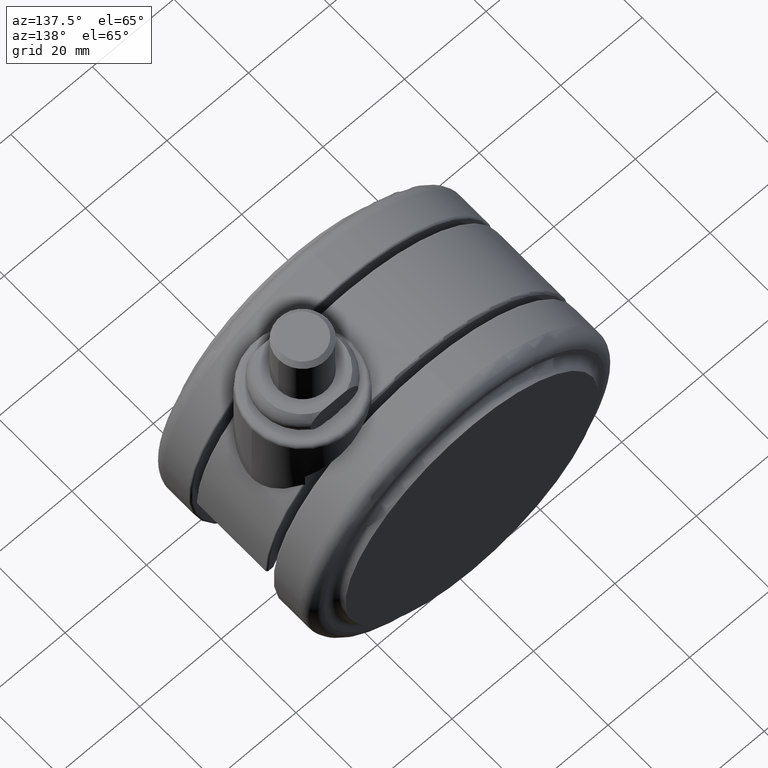
[diagram: clean part render]
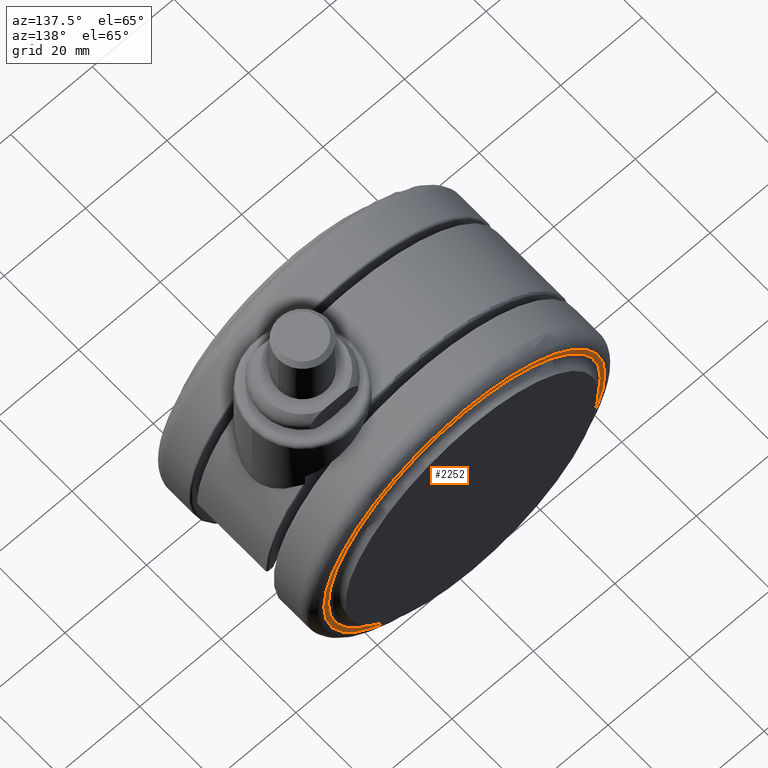
[diagram: same view with one face highlighted and labeled with its STEP entity id]
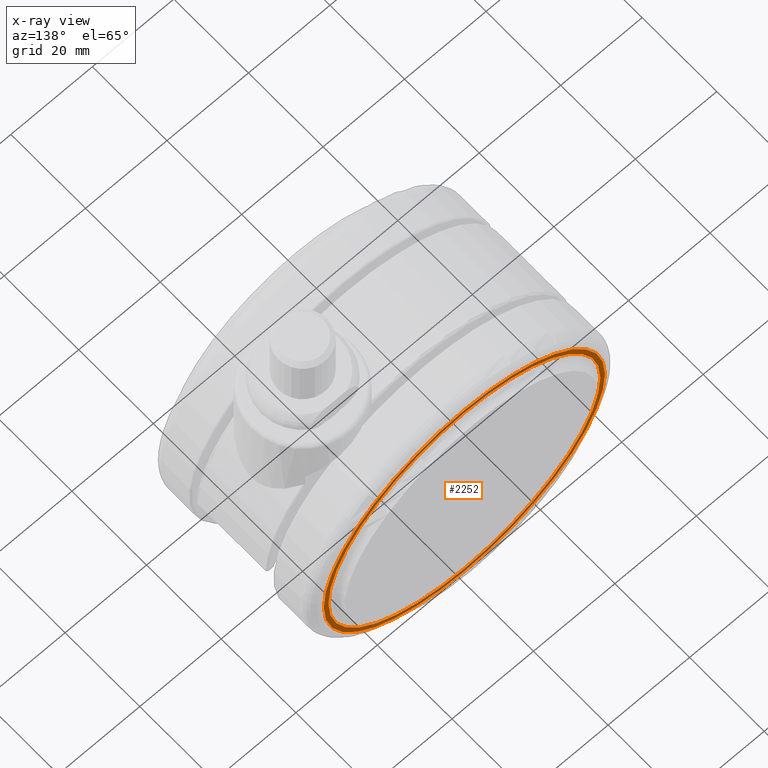
[diagram: x-ray of the same camera — body ghosted, the highlighted face saturated]
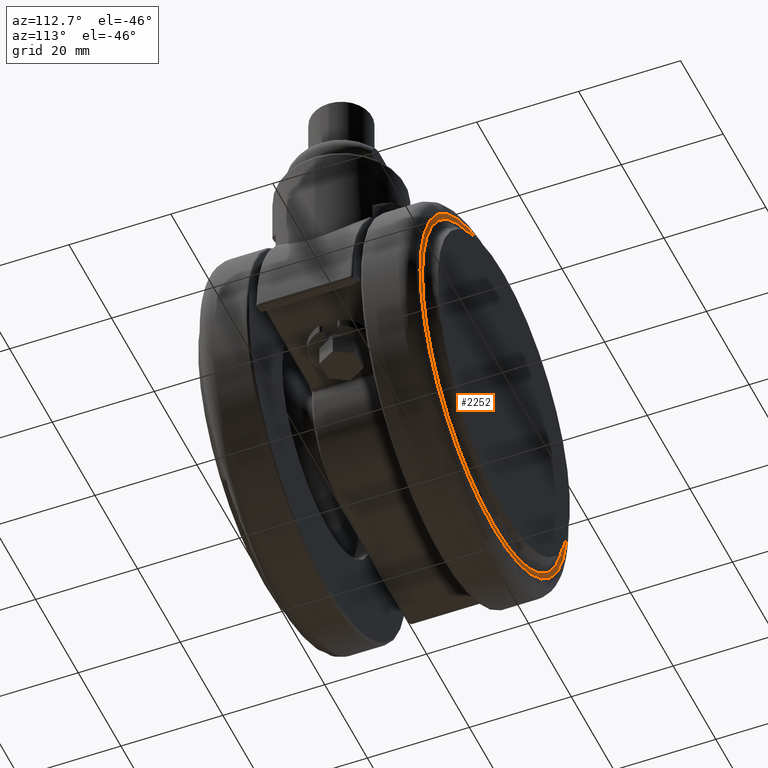
[diagram: same view with one face highlighted and labeled with its STEP entity id]
A machine part, auxiliary view. The second image highlights one B-rep face of the part: STEP entity #2252.
The next image is the same camera in x-ray: the body ghosted, the highlighted face saturated — about 0% of this face is hidden behind the body in this view.
A second angle (auxiliary view) of the same face is appended — the face is thin or edge-on in the first view.
In plain terms, the highlighted planar face has unit normal (0, 1, 0).
Its self-contained STEP definition (entity closure, byte-faithful):
#75 = ORIENTED_EDGE ( 'NONE', *, *, #699, .F. ) ;
#133 = PLANE ( 'NONE',  #1123 ) ;
#437 = EDGE_LOOP ( 'NONE', ( #75, #2395 ) ) ;
#474 = CIRCLE ( 'NONE', #2756, 33.38327505756375800 ) ;
#520 = CARTESIAN_POINT ( 'NONE',  ( -20.00000000000000000, 21.50000000000000000, -75.00000000000001400 ) ) ;
#555 = EDGE_LOOP ( 'NONE', ( #2861, #2438 ) ) ;
#557 = DIRECTION ( 'NONE',  ( -1.582413479254075000E-015, -1.000000000000000000, 0.0000000000000000000 ) ) ;
#608 = DIRECTION ( 'NONE',  ( 0.0000000000000000000, 0.0000000000000000000, -1.000000000000000000 ) ) ;
#617 = CARTESIAN_POINT ( 'NONE',  ( -20.00000000000000000, 21.50000000000000000, -40.50000000000000000 ) ) ;
#683 = CARTESIAN_POINT ( 'NONE',  ( -20.00000000000000700, 21.50000000000000000, -7.116724942436476900 ) ) ;
#699 = EDGE_CURVE ( 'NONE', #3390, #1830, #2125, .T. ) ;
#789 = DIRECTION ( 'NONE',  ( -1.582413479254075000E-015, -1.000000000000000000, 0.0000000000000000000 ) ) ;
#924 = CARTESIAN_POINT ( 'NONE',  ( -20.00000000000000000, 21.50000000000000000, -40.50000000000000000 ) ) ;
#1066 = DIRECTION ( 'NONE',  ( 0.0000000000000000000, 0.0000000000000000000, -1.000000000000000000 ) ) ;
#1123 = AXIS2_PLACEMENT_3D ( 'NONE', #3454, #2859, #1066 ) ;
#1167 = VERTEX_POINT ( 'NONE', #2368 ) ;
#1223 = DIRECTION ( 'NONE',  ( 0.0000000000000000000, 0.0000000000000000000, -1.000000000000000000 ) ) ;
#1393 = CARTESIAN_POINT ( 'NONE',  ( -20.00000000000000400, 21.50000000000000000, -5.999999999999998200 ) ) ;
#1400 = DIRECTION ( 'NONE',  ( -1.582413479254075000E-015, -1.000000000000000000, 0.0000000000000000000 ) ) ;
#1559 = CIRCLE ( 'NONE', #1909, 33.38327505756375800 ) ;
#1657 = FACE_BOUND ( 'NONE', #555, .T. ) ;
#1830 = VERTEX_POINT ( 'NONE', #1393 ) ;
#1909 = AXIS2_PLACEMENT_3D ( 'NONE', #2582, #789, #2886 ) ;
#2125 = CIRCLE ( 'NONE', #2564, 34.50000000000000700 ) ;
#2216 = CIRCLE ( 'NONE', #3299, 34.50000000000000700 ) ;
#2252 = ADVANCED_FACE ( 'NONE', ( #3263, #1657 ), #133, .T. ) ;
#2280 = EDGE_CURVE ( 'NONE', #1167, #2767, #1559, .T. ) ;
#2368 = CARTESIAN_POINT ( 'NONE',  ( -20.00000000000000400, 21.50000000000000000, -73.88327505756353700 ) ) ;
#2395 = ORIENTED_EDGE ( 'NONE', *, *, #3484, .F. ) ;
#2438 = ORIENTED_EDGE ( 'NONE', *, *, #3278, .T. ) ;
#2564 = AXIS2_PLACEMENT_3D ( 'NONE', #617, #557, #608 ) ;
#2582 = CARTESIAN_POINT ( 'NONE',  ( -20.00000000000000000, 21.50000000000000000, -40.50000000000000000 ) ) ;
#2756 = AXIS2_PLACEMENT_3D ( 'NONE', #3203, #1400, #3512 ) ;
#2767 = VERTEX_POINT ( 'NONE', #683 ) ;
#2859 = DIRECTION ( 'NONE',  ( 1.582413479254075000E-015, 1.000000000000000000, 0.0000000000000000000 ) ) ;
#2861 = ORIENTED_EDGE ( 'NONE', *, *, #2280, .T. ) ;
#2886 = DIRECTION ( 'NONE',  ( 0.0000000000000000000, 0.0000000000000000000, -1.000000000000000000 ) ) ;
#3031 = DIRECTION ( 'NONE',  ( -1.582413479254075000E-015, -1.000000000000000000, 0.0000000000000000000 ) ) ;
#3203 = CARTESIAN_POINT ( 'NONE',  ( -20.00000000000000000, 21.50000000000000000, -40.50000000000000000 ) ) ;
#3263 = FACE_OUTER_BOUND ( 'NONE', #437, .T. ) ;
#3278 = EDGE_CURVE ( 'NONE', #2767, #1167, #474, .T. ) ;
#3299 = AXIS2_PLACEMENT_3D ( 'NONE', #924, #3031, #1223 ) ;
#3390 = VERTEX_POINT ( 'NONE', #520 ) ;
#3454 = CARTESIAN_POINT ( 'NONE',  ( -53.38327505756370100, 21.50000000000000000, -40.50000000000000000 ) ) ;
#3484 = EDGE_CURVE ( 'NONE', #1830, #3390, #2216, .T. ) ;
#3512 = DIRECTION ( 'NONE',  ( 0.0000000000000000000, 0.0000000000000000000, -1.000000000000000000 ) ) ;